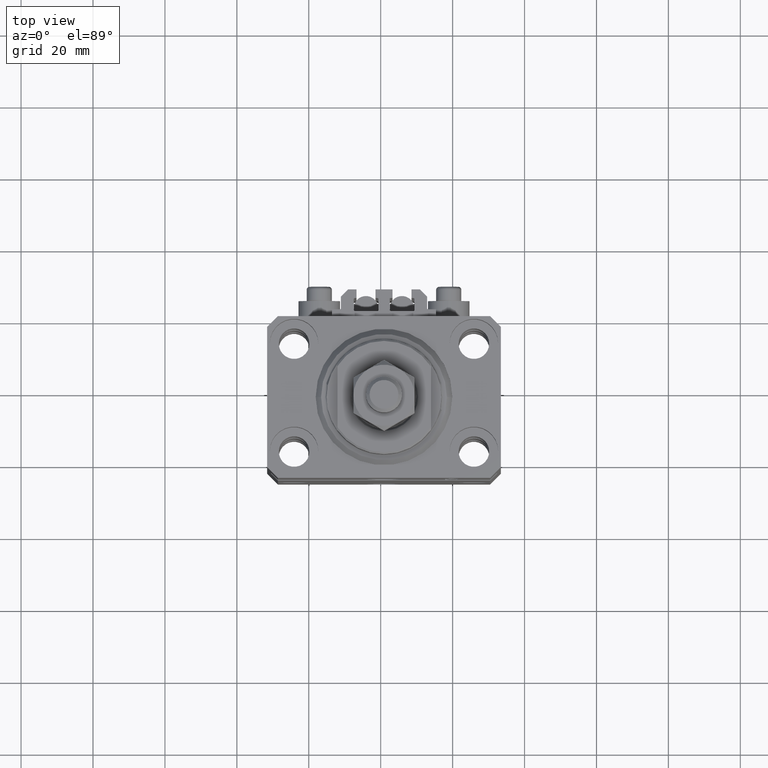
[diagram: clean part render]
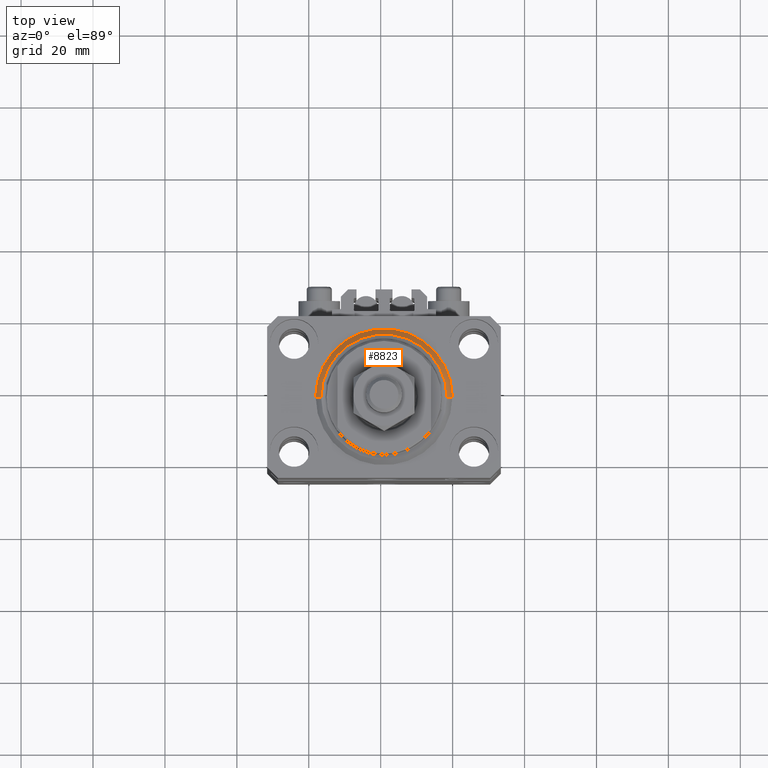
[diagram: same view with one face highlighted and labeled with its STEP entity id]
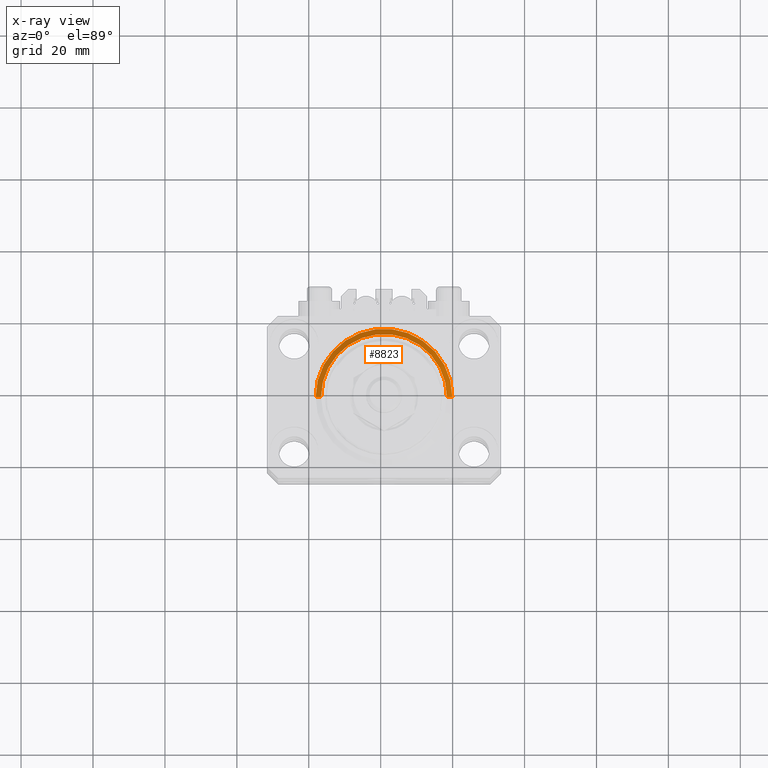
[diagram: x-ray of the same camera — body ghosted, the highlighted face saturated]
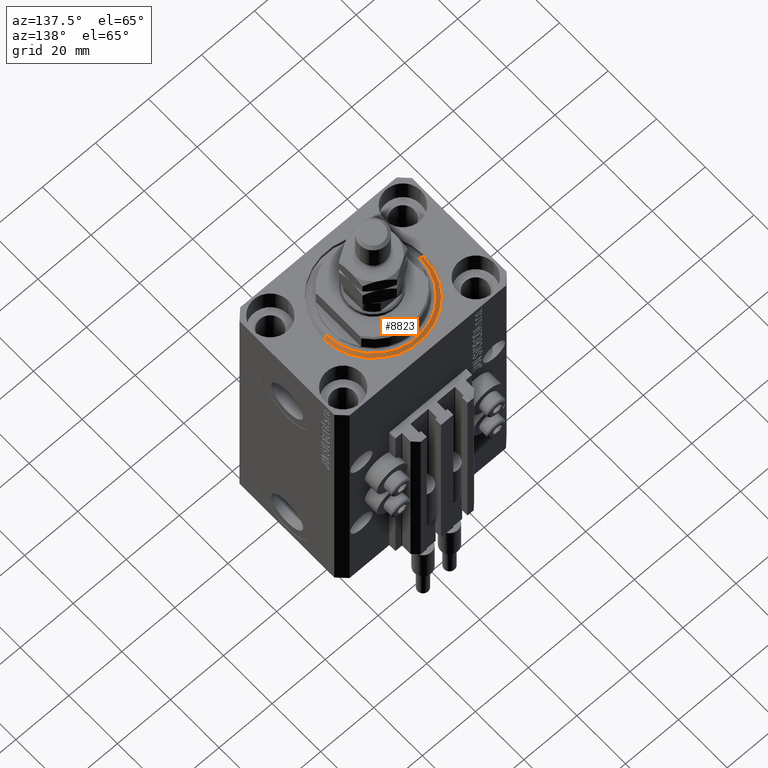
[diagram: same view with one face highlighted and labeled with its STEP entity id]
A machine part, top view. The second image highlights one B-rep face of the part: STEP entity #8823.
The next image is the same camera in x-ray: the body ghosted, the highlighted face saturated — about 0% of this face is hidden behind the body in this view.
A second angle (auxiliary view) of the same face is appended — the face is thin or edge-on in the first view.
In plain terms, the highlighted conical surface has half-angle 45 deg.
Its self-contained STEP definition (entity closure, byte-faithful):
#2808 = EDGE_CURVE ( 'NONE', #49274, #17075, #19546, .T. ) ;
#3252 = CARTESIAN_POINT ( 'NONE',  ( 0.000000000000000000, 0.000000000000000000, 1.500000000000004885 ) ) ;
#3277 = CARTESIAN_POINT ( 'NONE',  ( 0.000000000000000000, 0.000000000000000000, 1.500000000000004885 ) ) ;
#5083 = CONICAL_SURFACE ( 'NONE', #22037, 19.00000000000000000, 0.7853981633974492782 ) ;
#7107 = VERTEX_POINT ( 'NONE', #45775 ) ;
#8065 = CARTESIAN_POINT ( 'NONE',  ( -19.00000000000000000, 0.000000000000000000, 1.500000000000004885 ) ) ;
#8823 = ADVANCED_FACE ( 'NONE', ( #27114 ), #5083, .T. ) ;
#9521 = VECTOR ( 'NONE', #34225, 1000.000000000000000 ) ;
#10103 = AXIS2_PLACEMENT_3D ( 'NONE', #3252, #30134, #34183 ) ;
#11530 = CIRCLE ( 'NONE', #49582, 17.49999999999999289 ) ;
#12642 = DIRECTION ( 'NONE',  ( 1.000000000000000000, 0.000000000000000000, 0.000000000000000000 ) ) ;
#13721 = EDGE_CURVE ( 'NONE', #7107, #49274, #11530, .T. ) ;
#15243 = EDGE_CURVE ( 'NONE', #17075, #16123, #23062, .T. ) ;
#16123 = VERTEX_POINT ( 'NONE', #8065 ) ;
#16938 = ORIENTED_EDGE ( 'NONE', *, *, #13721, .F. ) ;
#17075 = VERTEX_POINT ( 'NONE', #25703 ) ;
#19506 = ORIENTED_EDGE ( 'NONE', *, *, #15243, .F. ) ;
#19545 = EDGE_LOOP ( 'NONE', ( #16938, #35303, #19506, #38929 ) ) ;
#19546 = LINE ( 'NONE', #42072, #29156 ) ;
#22037 = AXIS2_PLACEMENT_3D ( 'NONE', #3277, #23045, #38256 ) ;
#23045 = DIRECTION ( 'NONE',  ( -0.000000000000000000, -0.000000000000000000, 1.000000000000000000 ) ) ;
#23062 = CIRCLE ( 'NONE', #10103, 19.00000000000000000 ) ;
#25703 = CARTESIAN_POINT ( 'NONE',  ( 19.00000000000000000, 2.326828918379970970E-15, 1.500000000000004885 ) ) ;
#26113 = CARTESIAN_POINT ( 'NONE',  ( -19.00000000000000000, 2.326828918379970970E-15, 1.500000000000004885 ) ) ;
#27114 = FACE_OUTER_BOUND ( 'NONE', #19545, .T. ) ;
#28120 = CARTESIAN_POINT ( 'NONE',  ( 0.000000000000000000, 0.000000000000000000, 0.000000000000000000 ) ) ;
#29156 = VECTOR ( 'NONE', #34501, 1000.000000000000000 ) ;
#30134 = DIRECTION ( 'NONE',  ( -0.000000000000000000, -0.000000000000000000, 1.000000000000000000 ) ) ;
#31434 = EDGE_CURVE ( 'NONE', #7107, #16123, #49161, .T. ) ;
#34183 = DIRECTION ( 'NONE',  ( 1.000000000000000000, 0.000000000000000000, 0.000000000000000000 ) ) ;
#34225 = DIRECTION ( 'NONE',  ( -0.7071067811865483499, 8.659560562354943952E-17, 0.7071067811865467956 ) ) ;
#34501 = DIRECTION ( 'NONE',  ( 0.7071067811865483499, 0.000000000000000000, 0.7071067811865467956 ) ) ;
#35303 = ORIENTED_EDGE ( 'NONE', *, *, #31434, .T. ) ;
#38256 = DIRECTION ( 'NONE',  ( 1.000000000000000000, 0.000000000000000000, 0.000000000000000000 ) ) ;
#38929 = ORIENTED_EDGE ( 'NONE', *, *, #2808, .F. ) ;
#42072 = CARTESIAN_POINT ( 'NONE',  ( 19.00000000000000000, 0.000000000000000000, 1.500000000000004885 ) ) ;
#45775 = CARTESIAN_POINT ( 'NONE',  ( -17.49999999999999289, 2.234980408443919215E-15, 0.000000000000000000 ) ) ;
#47363 = DIRECTION ( 'NONE',  ( -0.000000000000000000, -0.000000000000000000, -1.000000000000000000 ) ) ;
#49161 = LINE ( 'NONE', #26113, #9521 ) ;
#49274 = VERTEX_POINT ( 'NONE', #49483 ) ;
#49483 = CARTESIAN_POINT ( 'NONE',  ( 17.49999999999999289, 0.000000000000000000, 0.000000000000000000 ) ) ;
#49582 = AXIS2_PLACEMENT_3D ( 'NONE', #28120, #47363, #12642 ) ;